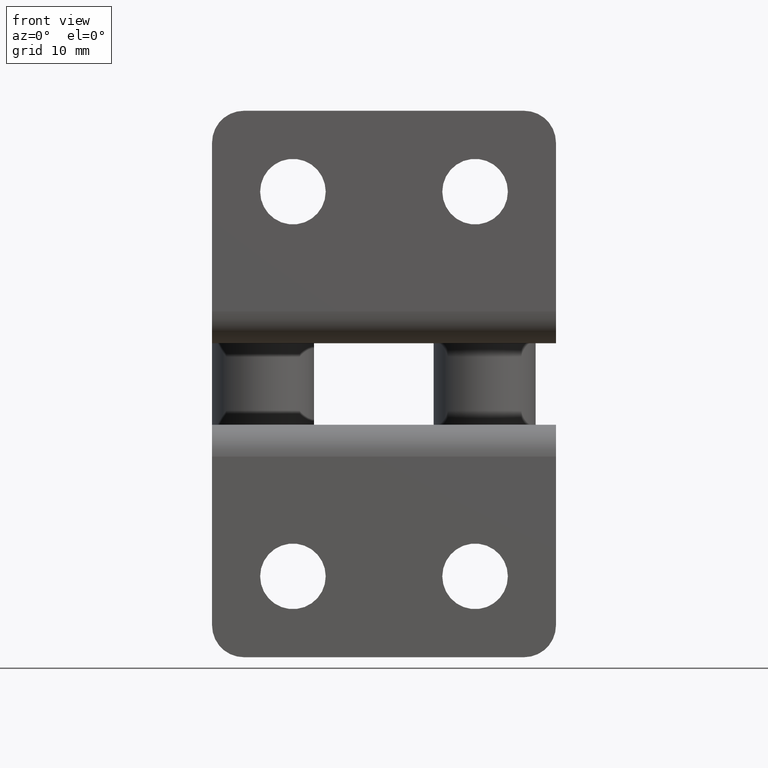
[diagram: clean part render]
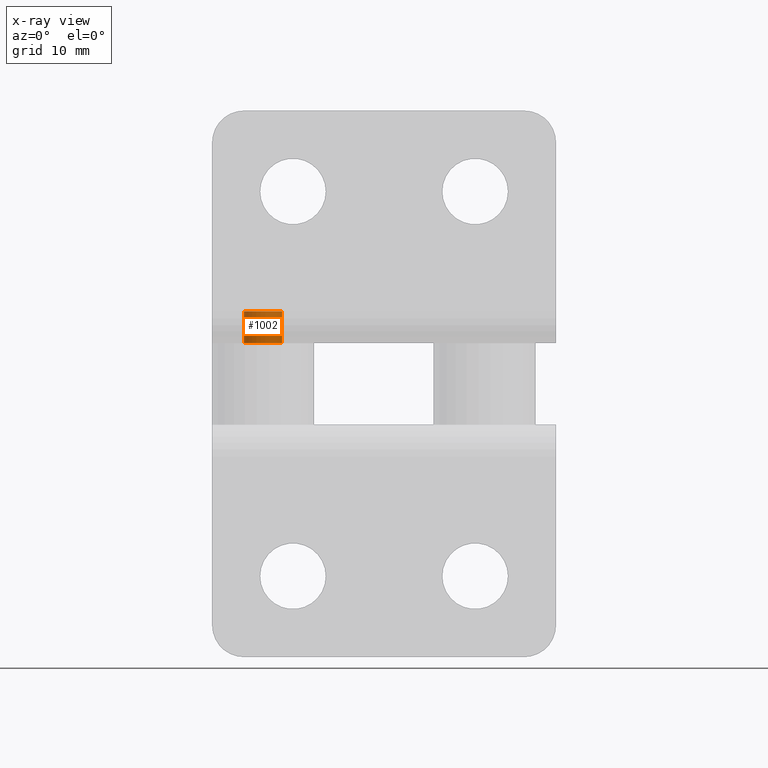
[diagram: x-ray — body ghosted, one internal face saturated and labeled with its STEP entity id]
A machine part, front view, then the same camera in x-ray: the body is ghosted and one INTERNAL B-rep face — a face not visible from any outside direction — is saturated and labeled: STEP entity #1002.
In plain terms, the highlighted cylindrical surface (edge-blend (fillet) strip) has radius 3 mm, axis along (0, 0, 1).
Its self-contained STEP definition (entity closure, byte-faithful):
#41 = LINE ( 'NONE', #170, #1602 ) ;
#103 = AXIS2_PLACEMENT_3D ( 'NONE', #832, #1083, #1400 ) ;
#170 = CARTESIAN_POINT ( 'NONE',  ( 4.999999999999992900, 45.99999999999987900, -49.00000000000005000 ) ) ;
#221 = AXIS2_PLACEMENT_3D ( 'NONE', #1420, #519, #1576 ) ;
#470 = CIRCLE ( 'NONE', #939, 3.000000000000000900 ) ;
#519 = DIRECTION ( 'NONE',  ( 0.0000000000000000000, 0.0000000000000000000, 1.000000000000000000 ) ) ;
#532 = LINE ( 'NONE', #857, #862 ) ;
#649 = CYLINDRICAL_SURFACE ( 'NONE', #103, 2.999999999999999100 ) ;
#678 = EDGE_CURVE ( 'NONE', #921, #1236, #470, .T. ) ;
#706 = DIRECTION ( 'NONE',  ( -0.0000000000000000000, -0.0000000000000000000, 1.000000000000000000 ) ) ;
#832 = CARTESIAN_POINT ( 'NONE',  ( 7.999999999999992900, 45.99999999999987900, -49.00000000000005000 ) ) ;
#857 = CARTESIAN_POINT ( 'NONE',  ( 10.99999999999999300, 45.99999999999987900, -49.00000000000005000 ) ) ;
#862 = VECTOR ( 'NONE', #1624, 1000.000000000000000 ) ;
#915 = ORIENTED_EDGE ( 'NONE', *, *, #1269, .T. ) ;
#921 = VERTEX_POINT ( 'NONE', #1579 ) ;
#939 = AXIS2_PLACEMENT_3D ( 'NONE', #1268, #1337, #1414 ) ;
#946 = CIRCLE ( 'NONE', #221, 2.999999999999999100 ) ;
#1002 = ADVANCED_FACE ( 'NONE', ( #1298 ), #649, .F. ) ;
#1071 = EDGE_CURVE ( 'NONE', #1236, #1156, #532, .T. ) ;
#1076 = EDGE_CURVE ( 'NONE', #921, #1709, #41, .T. ) ;
#1083 = DIRECTION ( 'NONE',  ( -0.0000000000000000000, -0.0000000000000000000, 1.000000000000000000 ) ) ;
#1156 = VERTEX_POINT ( 'NONE', #1374 ) ;
#1175 = ORIENTED_EDGE ( 'NONE', *, *, #1076, .T. ) ;
#1197 = CARTESIAN_POINT ( 'NONE',  ( 10.99999999999999500, 45.99999999999987900, 8.673617379884035500E-016 ) ) ;
#1236 = VERTEX_POINT ( 'NONE', #1197 ) ;
#1242 = EDGE_LOOP ( 'NONE', ( #1593, #1175, #915, #1790 ) ) ;
#1268 = CARTESIAN_POINT ( 'NONE',  ( 7.999999999999992900, 45.99999999999987900, 8.673617379884035500E-016 ) ) ;
#1269 = EDGE_CURVE ( 'NONE', #1709, #1156, #946, .T. ) ;
#1298 = FACE_OUTER_BOUND ( 'NONE', #1242, .T. ) ;
#1337 = DIRECTION ( 'NONE',  ( 0.0000000000000000000, 0.0000000000000000000, 1.000000000000000000 ) ) ;
#1374 = CARTESIAN_POINT ( 'NONE',  ( 10.99999999999999300, 45.99999999999987900, 4.999999999999948500 ) ) ;
#1400 = DIRECTION ( 'NONE',  ( 1.000000000000000000, 0.0000000000000000000, 0.0000000000000000000 ) ) ;
#1414 = DIRECTION ( 'NONE',  ( 1.000000000000000000, 0.0000000000000000000, 0.0000000000000000000 ) ) ;
#1420 = CARTESIAN_POINT ( 'NONE',  ( 7.999999999999992900, 45.99999999999987900, 4.999999999999948500 ) ) ;
#1576 = DIRECTION ( 'NONE',  ( 1.000000000000000000, 0.0000000000000000000, 0.0000000000000000000 ) ) ;
#1579 = CARTESIAN_POINT ( 'NONE',  ( 4.999999999999992000, 45.99999999999987900, 8.673617379884035500E-016 ) ) ;
#1593 = ORIENTED_EDGE ( 'NONE', *, *, #678, .F. ) ;
#1602 = VECTOR ( 'NONE', #706, 1000.000000000000000 ) ;
#1624 = DIRECTION ( 'NONE',  ( -0.0000000000000000000, -0.0000000000000000000, 1.000000000000000000 ) ) ;
#1655 = CARTESIAN_POINT ( 'NONE',  ( 4.999999999999992900, 45.99999999999987900, 4.999999999999948500 ) ) ;
#1709 = VERTEX_POINT ( 'NONE', #1655 ) ;
#1790 = ORIENTED_EDGE ( 'NONE', *, *, #1071, .F. ) ;